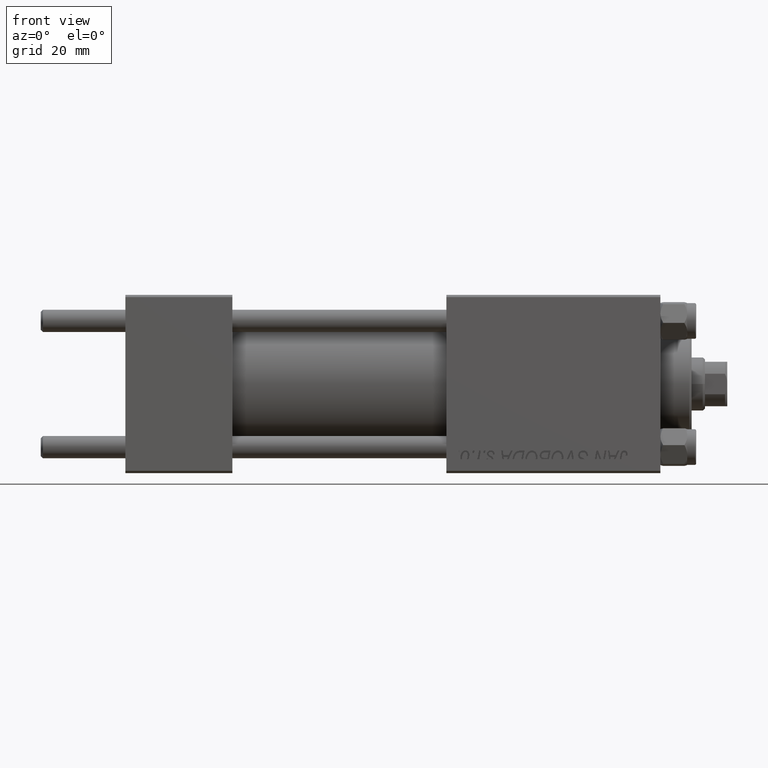
[diagram: clean part render]
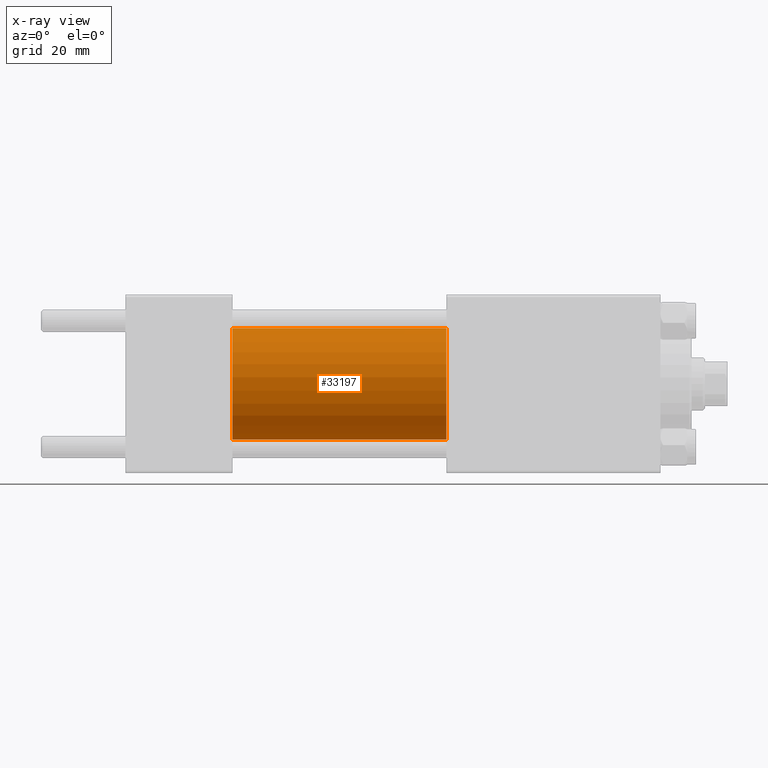
[diagram: x-ray — body ghosted, one internal face saturated and labeled with its STEP entity id]
A machine part, front view, then the same camera in x-ray: the body is ghosted and one INTERNAL B-rep face — a face not visible from any outside direction — is saturated and labeled: STEP entity #33197.
In plain terms, the highlighted cylindrical surface (partial cylindrical patch) has radius 12.5 mm, axis along (-1, -0, -0).
Its self-contained STEP definition (entity closure, byte-faithful):
#2105 = VERTEX_POINT ( 'NONE', #23693 ) ;
#2861 = LINE ( 'NONE', #49343, #49513 ) ;
#3489 = DIRECTION ( 'NONE',  ( 0.000000000000000000, 0.000000000000000000, -1.000000000000000000 ) ) ;
#3599 = CYLINDRICAL_SURFACE ( 'NONE', #31588, 12.49999999999999645 ) ;
#4065 = EDGE_LOOP ( 'NONE', ( #20942, #6945, #45584, #47809 ) ) ;
#6836 = DIRECTION ( 'NONE',  ( 1.000000000000000000, 0.000000000000000000, 0.000000000000000000 ) ) ;
#6945 = ORIENTED_EDGE ( 'NONE', *, *, #18834, .T. ) ;
#7466 = CIRCLE ( 'NONE', #30850, 12.49999999999999645 ) ;
#8781 = AXIS2_PLACEMENT_3D ( 'NONE', #49527, #6836, #23218 ) ;
#10684 = DIRECTION ( 'NONE',  ( -1.000000000000000000, -0.000000000000000000, -0.000000000000000000 ) ) ;
#11548 = DIRECTION ( 'NONE',  ( 1.000000000000000000, 0.000000000000000000, 0.000000000000000000 ) ) ;
#13598 = CIRCLE ( 'NONE', #8781, 12.49999999999999645 ) ;
#14179 = VERTEX_POINT ( 'NONE', #37461 ) ;
#15200 = DIRECTION ( 'NONE',  ( -1.000000000000000000, -0.000000000000000000, -0.000000000000000000 ) ) ;
#16695 = LINE ( 'NONE', #20484, #45976 ) ;
#17444 = DIRECTION ( 'NONE',  ( -1.000000000000000000, -0.000000000000000000, -0.000000000000000000 ) ) ;
#18485 = CARTESIAN_POINT ( 'NONE',  ( 72.00000000000001421, 0.000000000000000000, 0.000000000000000000 ) ) ;
#18738 = FACE_OUTER_BOUND ( 'NONE', #4065, .T. ) ;
#18834 = EDGE_CURVE ( 'NONE', #42385, #14179, #16695, .T. ) ;
#19123 = CARTESIAN_POINT ( 'NONE',  ( 24.00000000000000000, 0.000000000000000000, 0.000000000000000000 ) ) ;
#20484 = CARTESIAN_POINT ( 'NONE',  ( 72.00000000000001421, 1.530808498934191127E-15, -12.49999999999999645 ) ) ;
#20942 = ORIENTED_EDGE ( 'NONE', *, *, #21844, .T. ) ;
#21844 = EDGE_CURVE ( 'NONE', #26887, #42385, #13598, .T. ) ;
#23218 = DIRECTION ( 'NONE',  ( 0.000000000000000000, 0.000000000000000000, -1.000000000000000000 ) ) ;
#23693 = CARTESIAN_POINT ( 'NONE',  ( 24.00000000000000000, 0.000000000000000000, 12.49999999999999645 ) ) ;
#24245 = CARTESIAN_POINT ( 'NONE',  ( 72.00000000000001421, 1.530808498934191127E-15, -12.49999999999999645 ) ) ;
#26887 = VERTEX_POINT ( 'NONE', #44348 ) ;
#30850 = AXIS2_PLACEMENT_3D ( 'NONE', #19123, #11548, #3489 ) ;
#31588 = AXIS2_PLACEMENT_3D ( 'NONE', #18485, #15200, #33908 ) ;
#33197 = ADVANCED_FACE ( 'NONE', ( #18738 ), #3599, .F. ) ;
#33587 = EDGE_CURVE ( 'NONE', #2105, #14179, #7466, .T. ) ;
#33908 = DIRECTION ( 'NONE',  ( 0.000000000000000000, 0.000000000000000000, 1.000000000000000000 ) ) ;
#36839 = EDGE_CURVE ( 'NONE', #26887, #2105, #2861, .T. ) ;
#37461 = CARTESIAN_POINT ( 'NONE',  ( 24.00000000000000000, 1.530808498934191127E-15, -12.49999999999999645 ) ) ;
#42385 = VERTEX_POINT ( 'NONE', #24245 ) ;
#44348 = CARTESIAN_POINT ( 'NONE',  ( 72.00000000000001421, 0.000000000000000000, 12.49999999999999645 ) ) ;
#45584 = ORIENTED_EDGE ( 'NONE', *, *, #33587, .F. ) ;
#45976 = VECTOR ( 'NONE', #17444, 1000.000000000000000 ) ;
#47809 = ORIENTED_EDGE ( 'NONE', *, *, #36839, .F. ) ;
#49343 = CARTESIAN_POINT ( 'NONE',  ( 72.00000000000001421, 0.000000000000000000, 12.49999999999999645 ) ) ;
#49513 = VECTOR ( 'NONE', #10684, 1000.000000000000000 ) ;
#49527 = CARTESIAN_POINT ( 'NONE',  ( 72.00000000000001421, 0.000000000000000000, 0.000000000000000000 ) ) ;